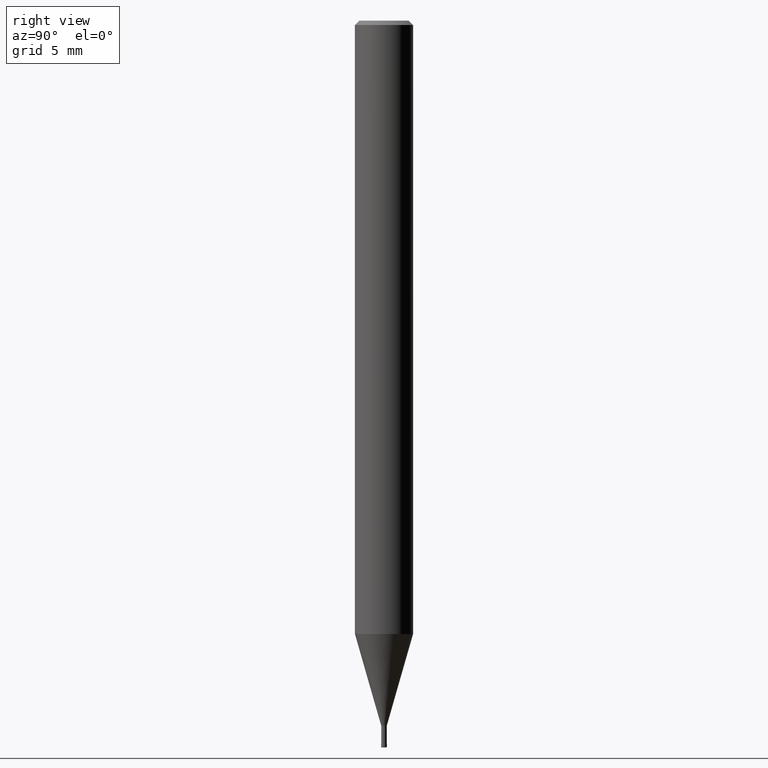
[diagram: clean part render]
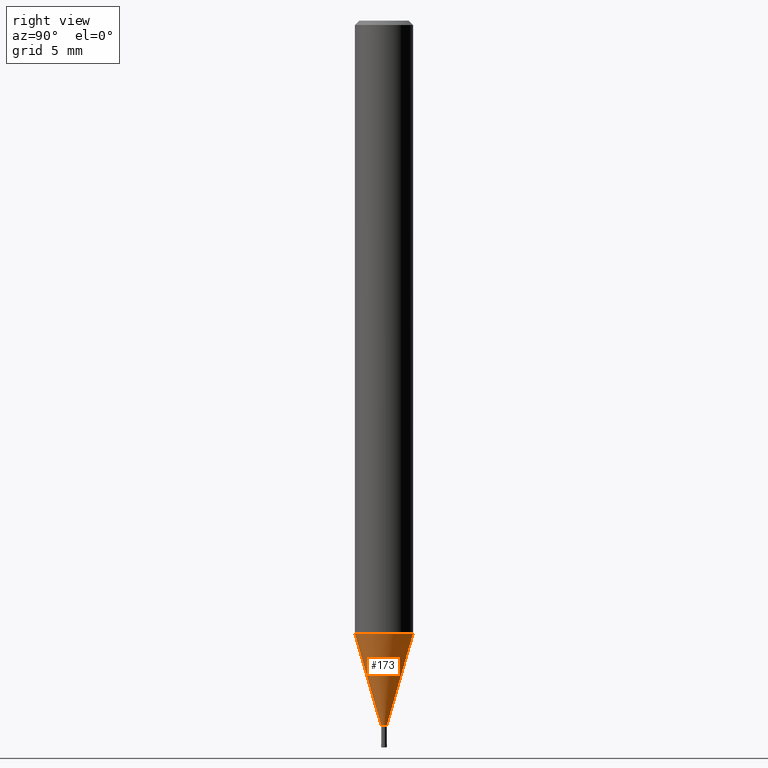
[diagram: same view with one face highlighted and labeled with its STEP entity id]
A machine part, right view. The second image highlights one B-rep face of the part: STEP entity #173.
In plain terms, the highlighted conical surface has half-angle 15.999 deg.
Its self-contained STEP definition (entity closure, byte-faithful):
#153=EDGE_CURVE('',#237,#313,#393,.T.);
#173=ADVANCED_FACE('',(#418),#419,.T.);
#203=EDGE_CURVE('',#313,#279,#454,.T.);
#237=VERTEX_POINT('',#491);
#279=VERTEX_POINT('',#537);
#287=EDGE_CURVE('',#237,#305,#545,.T.);
#305=VERTEX_POINT('',#565);
#313=VERTEX_POINT('',#574);
#315=EDGE_CURVE('',#279,#305,#576,.T.);
#393=LINE('',#652,#653);
#418=FACE_OUTER_BOUND('',#684,.T.);
#419=CONICAL_SURFACE('',#685,1.0962,0.279231732547063);
#454=CIRCLE('',#731,0.19245);
#491=CARTESIAN_POINT('',(0.0,1.99995,-42.186));
#537=CARTESIAN_POINT('',(2.35675492793117E-017,-0.19245,-48.49));
#545=CIRCLE('',#849,1.99995);
#565=CARTESIAN_POINT('',(2.44915147732706E-016,-1.99995,-42.186));
#574=CARTESIAN_POINT('',(0.0,0.19245,-48.49));
#576=LINE('',#887,#888);
#652=CARTESIAN_POINT('',(-1.34241348506009E-016,1.0962,-45.338));
#653=VECTOR('',#980,1.0);
#684=EDGE_LOOP('',(#1020,#1021,#1022,#1023));
#685=AXIS2_PLACEMENT_3D('',#1024,#1025,#1026);
#731=AXIS2_PLACEMENT_3D('',#1073,#1074,#1075);
#849=AXIS2_PLACEMENT_3D('',#1181,#1182,#1183);
#887=CARTESIAN_POINT('',(1.34241348506009E-016,-1.0962,-45.338));
#888=VECTOR('',#1214,1.0);
#980=DIRECTION('',(3.375225981805E-017,-0.275617219465657,-0.961267469715906));
#1020=ORIENTED_EDGE('',*,*,#153,.F.);
#1021=ORIENTED_EDGE('',*,*,#287,.T.);
#1022=ORIENTED_EDGE('',*,*,#315,.F.);
#1023=ORIENTED_EDGE('',*,*,#203,.F.);
#1024=CARTESIAN_POINT('',(0.0,0.0,-45.338));
#1025=DIRECTION('',(-0.0,-0.0,1.0));
#1026=DIRECTION('',(0.0,1.0,0.0));
#1073=CARTESIAN_POINT('',(0.0,0.0,-48.49));
#1074=DIRECTION('',(0.0,0.0,-1.0));
#1075=DIRECTION('',(0.0,1.0,0.0));
#1181=CARTESIAN_POINT('',(0.0,0.0,-42.186));
#1182=DIRECTION('',(0.0,0.0,-1.0));
#1183=DIRECTION('',(0.0,1.0,0.0));
#1214=DIRECTION('',(3.375225981805E-017,-0.275617219465657,0.961267469715906));